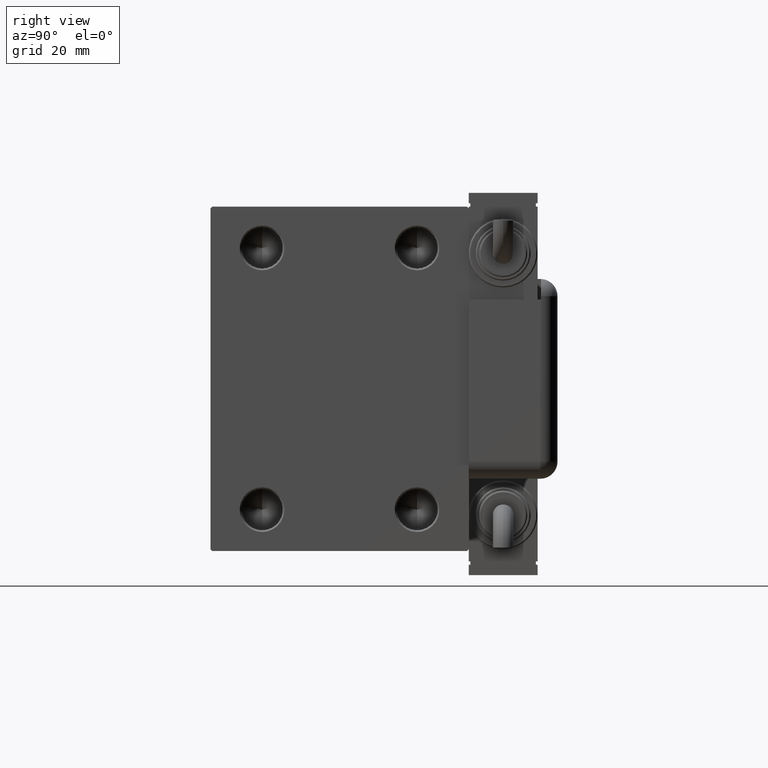
[diagram: clean part render]
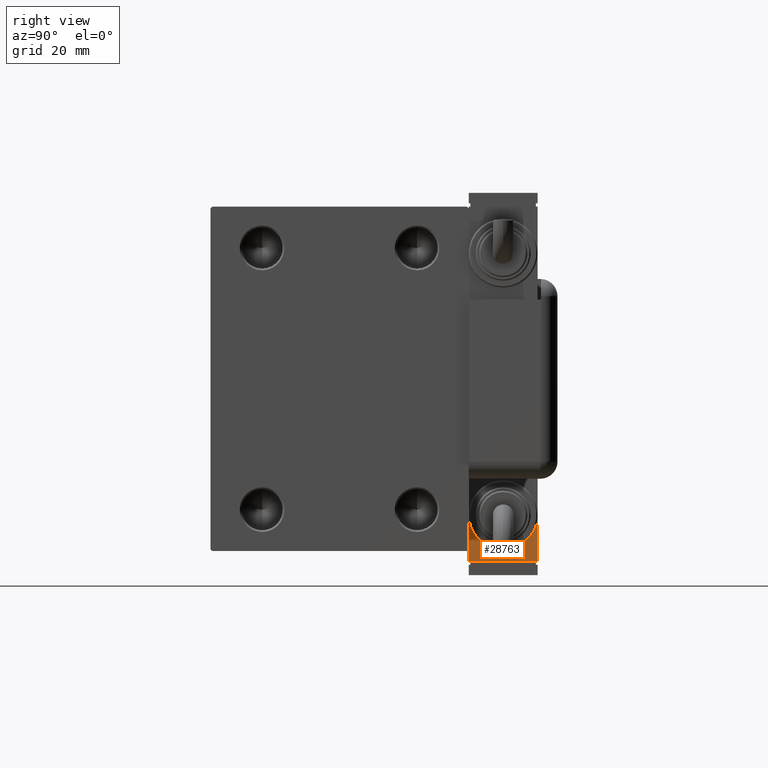
[diagram: same view with one face highlighted and labeled with its STEP entity id]
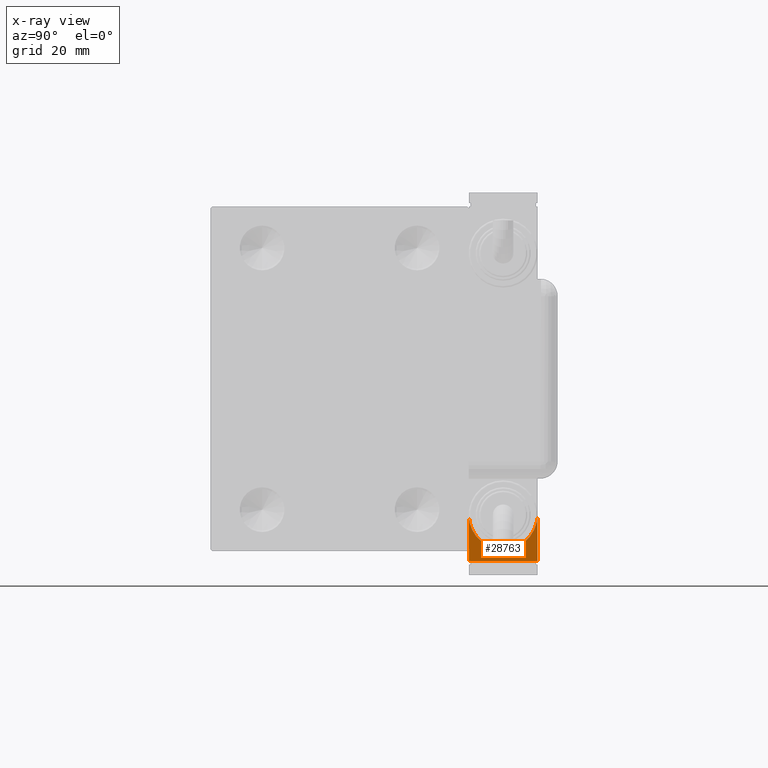
[diagram: x-ray of the same camera — body ghosted, the highlighted face saturated]
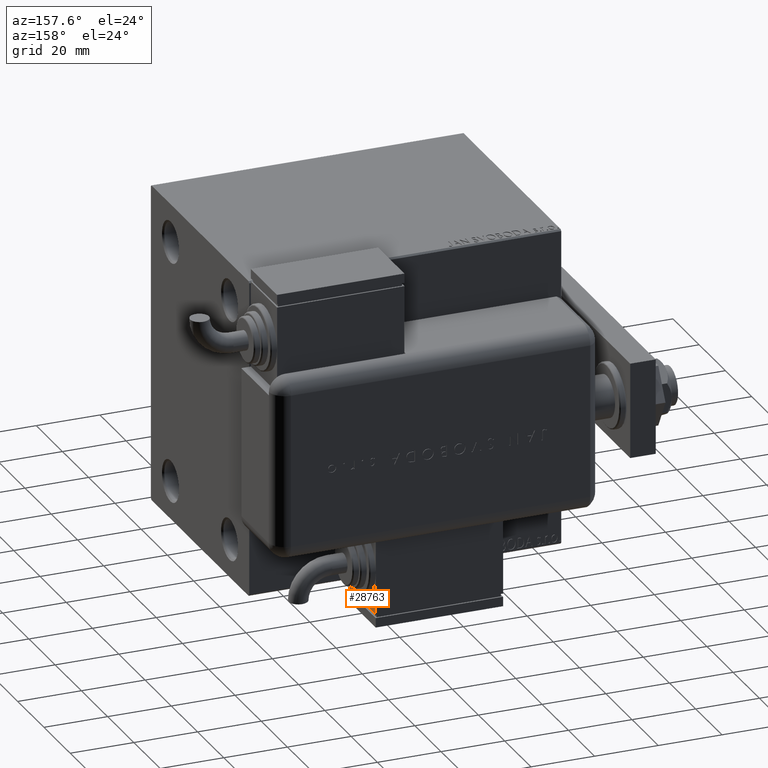
[diagram: same view with one face highlighted and labeled with its STEP entity id]
A machine part, right view. The second image highlights one B-rep face of the part: STEP entity #28763.
The next image is the same camera in x-ray: the body ghosted, the highlighted face saturated — about 0% of this face is hidden behind the body in this view.
A second angle (auxiliary view) of the same face is appended — the face is thin or edge-on in the first view.
In plain terms, the highlighted planar face has unit normal (-1, 0, 0).
Its self-contained STEP definition (entity closure, byte-faithful):
#1448 = ORIENTED_EDGE ( 'NONE', *, *, #39319, .F. ) ;
#1692 = CARTESIAN_POINT ( 'NONE',  ( -19.99999999999994316, -13.49999999999996092, 10.00000000000000000 ) ) ;
#4856 = DIRECTION ( 'NONE',  ( -1.000000000000000000, 1.284980352575421081E-16, 0.000000000000000000 ) ) ;
#5872 = EDGE_CURVE ( 'NONE', #45542, #24664, #21605, .T. ) ;
#6561 = DIRECTION ( 'NONE',  ( 0.000000000000000000, -1.000000000000000000, 0.000000000000000000 ) ) ;
#6693 = CARTESIAN_POINT ( 'NONE',  ( -19.99999999999993960, 2.569960705150834076E-15, -9.999999999999996447 ) ) ;
#9937 = DIRECTION ( 'NONE',  ( -1.284980352575421081E-16, -1.000000000000000000, -0.000000000000000000 ) ) ;
#12605 = DIRECTION ( 'NONE',  ( 1.284980352575421081E-16, 1.000000000000000000, 0.000000000000000000 ) ) ;
#13138 = CARTESIAN_POINT ( 'NONE',  ( -19.99999999999994316, -13.49999999999996092, 10.00000000000000000 ) ) ;
#13283 = CIRCLE ( 'NONE', #47329, 10.00000000000000000 ) ;
#15093 = VECTOR ( 'NONE', #40188, 1000.000000000000000 ) ;
#15599 = VERTEX_POINT ( 'NONE', #6693 ) ;
#17177 = PLANE ( 'NONE',  #17240 ) ;
#17240 = AXIS2_PLACEMENT_3D ( 'NONE', #21433, #53121, #12605 ) ;
#18869 = DIRECTION ( 'NONE',  ( 0.000000000000000000, -1.000000000000000000, 0.000000000000000000 ) ) ;
#21312 = EDGE_CURVE ( 'NONE', #24664, #54561, #43416, .T. ) ;
#21433 = CARTESIAN_POINT ( 'NONE',  ( -19.99999999999994316, -13.49999999999996092, 10.00000000000000000 ) ) ;
#21605 = LINE ( 'NONE', #35622, #15093 ) ;
#24664 = VERTEX_POINT ( 'NONE', #13138 ) ;
#27896 = ORIENTED_EDGE ( 'NONE', *, *, #52423, .F. ) ;
#27915 = LINE ( 'NONE', #37060, #46893 ) ;
#28763 = ADVANCED_FACE ( 'NONE', ( #30864 ), #17177, .F. ) ;
#29700 = CARTESIAN_POINT ( 'NONE',  ( -19.99999999999993960, 2.569960705150834076E-15, 0.000000000000000000 ) ) ;
#30864 = FACE_OUTER_BOUND ( 'NONE', #35183, .T. ) ;
#35183 = EDGE_LOOP ( 'NONE', ( #1448, #49296, #36827, #50908, #27896 ) ) ;
#35622 = CARTESIAN_POINT ( 'NONE',  ( -19.99999999999994316, -13.49999999999996092, 10.00000000000000000 ) ) ;
#36827 = ORIENTED_EDGE ( 'NONE', *, *, #21312, .F. ) ;
#37060 = CARTESIAN_POINT ( 'NONE',  ( -19.99999999999994316, -13.49999999999996092, -10.00000000000000000 ) ) ;
#38926 = AXIS2_PLACEMENT_3D ( 'NONE', #60006, #4856, #18869 ) ;
#39270 = CARTESIAN_POINT ( 'NONE',  ( -19.99999999999994316, -13.49999999999996092, -10.00000000000000000 ) ) ;
#39319 = EDGE_CURVE ( 'NONE', #15599, #59369, #13283, .T. ) ;
#40188 = DIRECTION ( 'NONE',  ( -1.284980352575421081E-16, -1.000000000000000000, -0.000000000000000000 ) ) ;
#40363 = DIRECTION ( 'NONE',  ( -0.000000000000000000, -0.000000000000000000, -1.000000000000000000 ) ) ;
#43416 = LINE ( 'NONE', #1692, #46667 ) ;
#45542 = VERTEX_POINT ( 'NONE', #51763 ) ;
#46667 = VECTOR ( 'NONE', #40363, 1000.000000000000000 ) ;
#46893 = VECTOR ( 'NONE', #9937, 1000.000000000000000 ) ;
#47329 = AXIS2_PLACEMENT_3D ( 'NONE', #29700, #53481, #6561 ) ;
#49296 = ORIENTED_EDGE ( 'NONE', *, *, #55591, .T. ) ;
#50908 = ORIENTED_EDGE ( 'NONE', *, *, #5872, .F. ) ;
#51763 = CARTESIAN_POINT ( 'NONE',  ( -19.99999999999993960, 2.569960705150834076E-15, 10.00000000000000000 ) ) ;
#52423 = EDGE_CURVE ( 'NONE', #59369, #45542, #57438, .T. ) ;
#53121 = DIRECTION ( 'NONE',  ( 1.000000000000000000, -1.284980352575421081E-16, 0.000000000000000000 ) ) ;
#53481 = DIRECTION ( 'NONE',  ( -1.000000000000000000, 1.284980352575421081E-16, 0.000000000000000000 ) ) ;
#54561 = VERTEX_POINT ( 'NONE', #39270 ) ;
#54973 = CARTESIAN_POINT ( 'NONE',  ( -19.99999999999993960, -9.999999999999998224, 1.224646799147353256E-15 ) ) ;
#55591 = EDGE_CURVE ( 'NONE', #15599, #54561, #27915, .T. ) ;
#57438 = CIRCLE ( 'NONE', #38926, 10.00000000000000000 ) ;
#59369 = VERTEX_POINT ( 'NONE', #54973 ) ;
#60006 = CARTESIAN_POINT ( 'NONE',  ( -19.99999999999993960, 2.569960705150834076E-15, 0.000000000000000000 ) ) ;